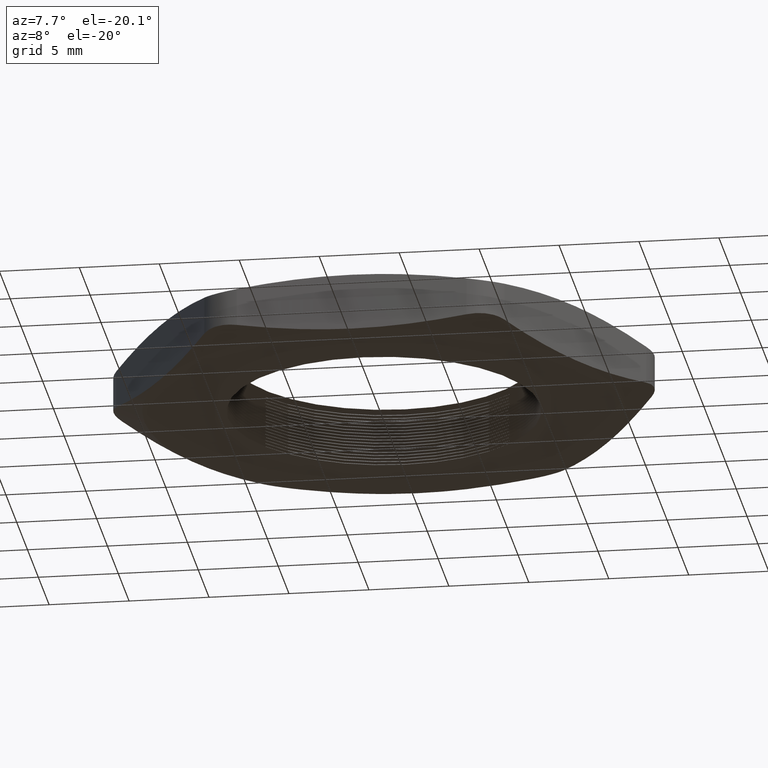
[diagram: clean part render]
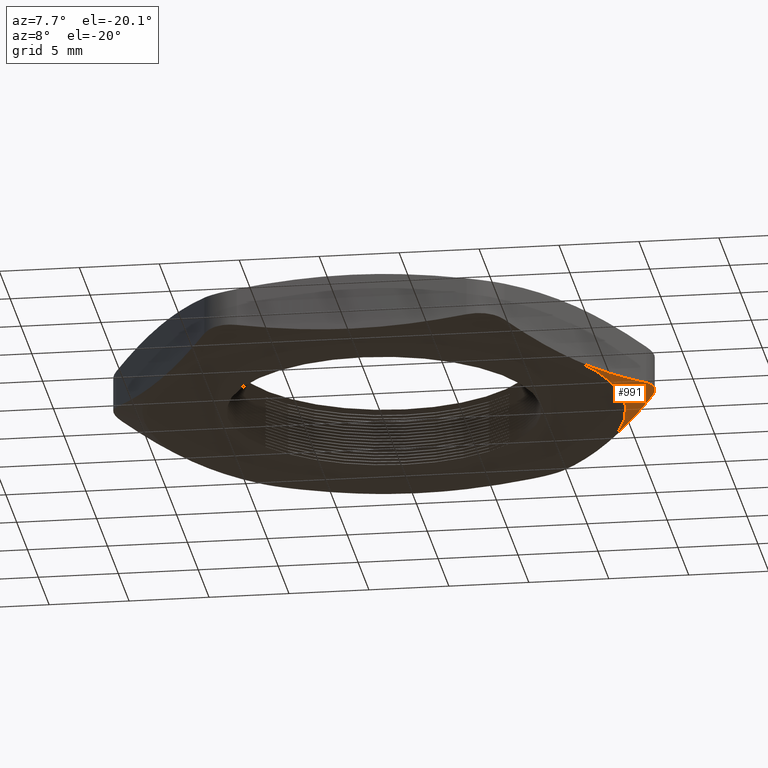
[diagram: same view with one face highlighted and labeled with its STEP entity id]
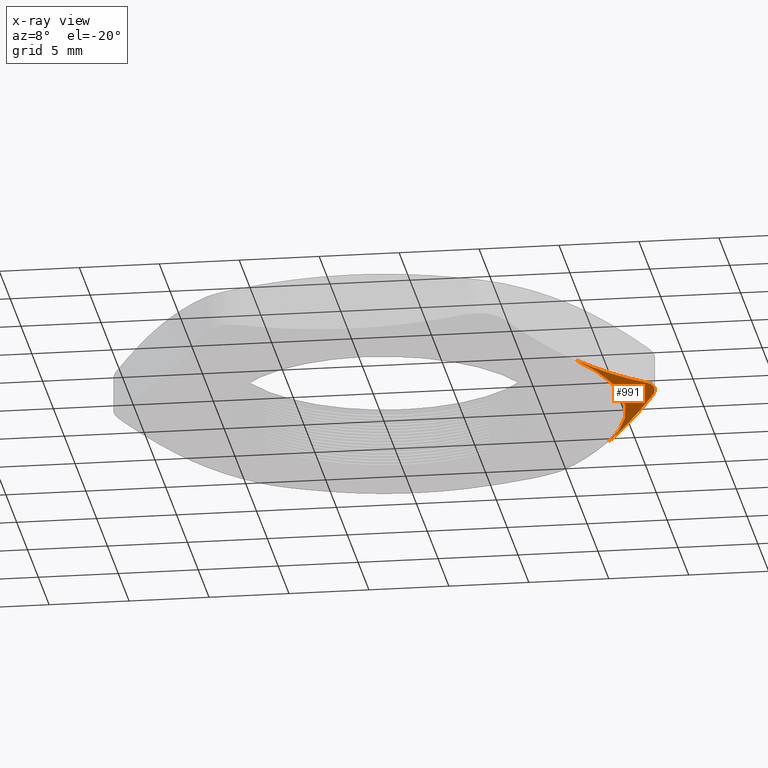
[diagram: x-ray of the same camera — body ghosted, the highlighted face saturated]
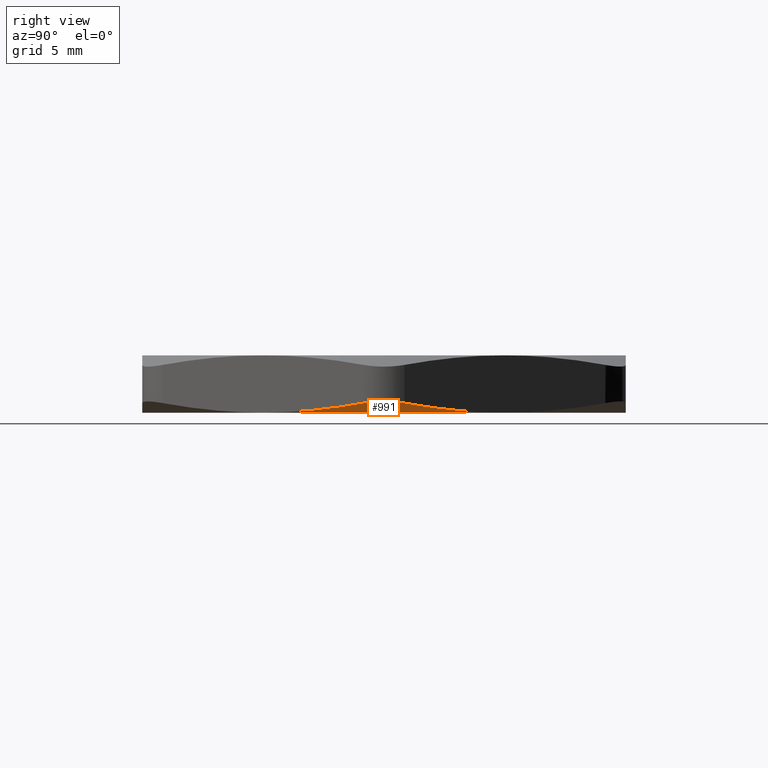
[diagram: same view with one face highlighted and labeled with its STEP entity id]
A machine part, auxiliary view. The second image highlights one B-rep face of the part: STEP entity #991.
The next image is the same camera in x-ray: the body ghosted, the highlighted face saturated — about 0% of this face is hidden behind the body in this view.
A second angle (right view) of the same face is appended — the face is thin or edge-on in the first view.
In plain terms, the highlighted conical surface has half-angle 70 deg.
Its self-contained STEP definition (entity closure, byte-faithful):
#755 = EDGE_CURVE ( 'NONE', #762, #756, #2046, .T. ) ;
#756 = VERTEX_POINT ( 'NONE', #2045 ) ;
#762 = VERTEX_POINT ( 'NONE', #2079 ) ;
#827 = VERTEX_POINT ( 'NONE', #2166 ) ;
#829 = EDGE_CURVE ( 'NONE', #902, #827, #2211, .T. ) ;
#902 = VERTEX_POINT ( 'NONE', #2399 ) ;
#915 = EDGE_CURVE ( 'NONE', #756, #902, #2426, .T. ) ;
#917 = EDGE_CURVE ( 'NONE', #762, #827, #2421, .T. ) ;
#991 = ADVANCED_FACE ( 'NONE', ( #2597 ), #2596, .T. ) ;
#992 = EDGE_LOOP ( 'NONE', ( #993, #994, #995, #996 ) ) ;
#993 = ORIENTED_EDGE ( 'NONE', *, *, #755, .T. ) ;
#994 = ORIENTED_EDGE ( 'NONE', *, *, #915, .T. ) ;
#995 = ORIENTED_EDGE ( 'NONE', *, *, #829, .T. ) ;
#996 = ORIENTED_EDGE ( 'NONE', *, *, #917, .F. ) ;
#2039 = CARTESIAN_POINT ( 'NONE',  ( 0.5109549882328188200, -0.2949999999999998700, 0.0000000000000000000 ) ) ;
#2040 = CARTESIAN_POINT ( 'NONE',  ( 0.5345301242247285600, -0.2541666666666665400, -5.582413990959443900E-017 ) ) ;
#2041 = CARTESIAN_POINT ( 'NONE',  ( 0.5581052602166380900, -0.2133333333333331500, 0.002084342655727913700 ) ) ;
#2042 = CARTESIAN_POINT ( 'NONE',  ( 0.6052555322004576900, -0.1316666666666665200, 0.01008632702185032600 ) ) ;
#2043 = CARTESIAN_POINT ( 'NONE',  ( 0.6288306681923672100, -0.09083333333333318300, 0.01599033084279017500 ) ) ;
#2044 = CARTESIAN_POINT ( 'NONE',  ( 0.6524058041842769600, -0.04999999999999978100, 0.02341019581624018500 ) ) ;
#2045 = CARTESIAN_POINT ( 'NONE',  ( 0.5109549882328188200, -0.2949999999999998700, 0.0000000000000000000 ) ) ;
#2046 = B_SPLINE_CURVE_WITH_KNOTS ( 'NONE', 3,
 ( #2044, #2043, #2042, #2041, #2040, #2039 ),
 .UNSPECIFIED., .F., .F.,
 ( 4, 2, 4 ),
 ( 2.309401076811265600E-007, 0.003593081665274721700, 0.007185932390441762200 ),
 .UNSPECIFIED. ) ;
#2079 = CARTESIAN_POINT ( 'NONE',  ( 0.6524058041842769600, -0.04999999999999978100, 0.02341019581624018500 ) ) ;
#2166 = CARTESIAN_POINT ( 'NONE',  ( 0.6524058041842770700, 0.05000000000000018300, 0.02341019581624020900 ) ) ;
#2204 = CARTESIAN_POINT ( 'NONE',  ( 0.6524058041842770700, 0.05000000000000018300, 0.02341019581624020900 ) ) ;
#2205 = CARTESIAN_POINT ( 'NONE',  ( 0.6288306681923673300, 0.09083333333333354400, 0.01599033084279023000 ) ) ;
#2206 = CARTESIAN_POINT ( 'NONE',  ( 0.6052555322004576900, 0.1316666666666667700, 0.01008632702185039200 ) ) ;
#2207 = CARTESIAN_POINT ( 'NONE',  ( 0.5581052602166384200, 0.2133333333333334000, 0.002084342655728005600 ) ) ;
#2208 = CARTESIAN_POINT ( 'NONE',  ( 0.5345301242247287900, 0.2541666666666666500, 4.531959745348794200E-017 ) ) ;
#2209 = CARTESIAN_POINT ( 'NONE',  ( 0.5109549882328188200, 0.2949999999999998700, 0.0000000000000000000 ) ) ;
#2211 = B_SPLINE_CURVE_WITH_KNOTS ( 'NONE', 3,
 ( #2209, #2208, #2207, #2206, #2205, #2204 ),
 .UNSPECIFIED., .F., .F.,
 ( 4, 2, 4 ),
 ( 0.007185932390441752600, 0.01077878311560878800, 0.01437163384077582400 ),
 .UNSPECIFIED. ) ;
#2399 = CARTESIAN_POINT ( 'NONE',  ( 0.5109549882328188200, 0.2949999999999998700, 0.0000000000000000000 ) ) ;
#2409 = CARTESIAN_POINT ( 'NONE',  ( 0.6524058041842770700, 0.05000000000000018300, 0.02341019581624020900 ) ) ;
#2410 = CARTESIAN_POINT ( 'NONE',  ( 0.6567722321149901400, 0.04243712497641721800, 0.02478445324038868300 ) ) ;
#2411 = CARTESIAN_POINT ( 'NONE',  ( 0.6601323680625363900, 0.03431602804552395800, 0.02583072561450863000 ) ) ;
#2412 = CARTESIAN_POINT ( 'NONE',  ( 0.6646388698686094300, 0.01752405960092745200, 0.02723072458379011100 ) ) ;
#2413 = CARTESIAN_POINT ( 'NONE',  ( 0.6658079342437964700, 0.008666486709781838500, 0.02759157627025747600 ) ) ;
#2414 = CARTESIAN_POINT ( 'NONE',  ( 0.6657985645049072600, -0.008773935228747451600, 0.02758867817341872600 ) ) ;
#2415 = CARTESIAN_POINT ( 'NONE',  ( 0.6646340724745877200, -0.01757158286261217500, 0.02722925497086770700 ) ) ;
#2416 = CARTESIAN_POINT ( 'NONE',  ( 0.6600912482963142700, -0.03443929800591819700, 0.02581793029867506700 ) ) ;
#2417 = CARTESIAN_POINT ( 'NONE',  ( 0.6567718381048283100, -0.04243780742203575500, 0.02478432923252720000 ) ) ;
#2418 = CARTESIAN_POINT ( 'NONE',  ( 0.6524058041842769600, -0.04999999999999978100, 0.02341019581624018500 ) ) ;
#2421 = B_SPLINE_CURVE_WITH_KNOTS ( 'NONE', 3,
 ( #2418, #2417, #2416, #2415, #2414, #2413, #2412, #2411, #2410, #2409 ),
 .UNSPECIFIED., .F., .F.,
 ( 4, 2, 2, 2, 4 ),
 ( 2.305404944963151100E-007, 0.0006644492159182240600, 0.001328667891341951800, 0.001992886566765679700, 0.002657105242189407300 ),
 .UNSPECIFIED. ) ;
#2422 = DIRECTION ( 'NONE',  ( 1.000000000000000000, 0.0000000000000000000, 0.0000000000000000000 ) ) ;
#2423 = DIRECTION ( 'NONE',  ( -0.0000000000000000000, 0.0000000000000000000, 1.000000000000000000 ) ) ;
#2424 = CARTESIAN_POINT ( 'NONE',  ( 0.0000000000000000000, 0.0000000000000000000, 0.0000000000000000000 ) ) ;
#2425 = AXIS2_PLACEMENT_3D ( 'NONE', #2424, #2423, #2422 ) ;
#2426 = CIRCLE ( 'NONE', #2425, 0.5899999999999999700 ) ;
#2591 = DIRECTION ( 'NONE',  ( -1.000000000000000000, 0.0000000000000000000, 0.0000000000000000000 ) ) ;
#2592 = DIRECTION ( 'NONE',  ( 0.0000000000000000000, 0.0000000000000000000, 1.000000000000000000 ) ) ;
#2593 = CARTESIAN_POINT ( 'NONE',  ( 0.0000000000000000000, 0.0000000000000000000, 0.0000000000000000000 ) ) ;
#2594 = AXIS2_PLACEMENT_3D ( 'NONE', #2593, #2592, #2591 ) ;
#2596 = CONICAL_SURFACE ( 'NONE', #2594, 0.5899999999999999700, 1.221730476396033500 ) ;
#2597 = FACE_OUTER_BOUND ( 'NONE', #992, .T. ) ;